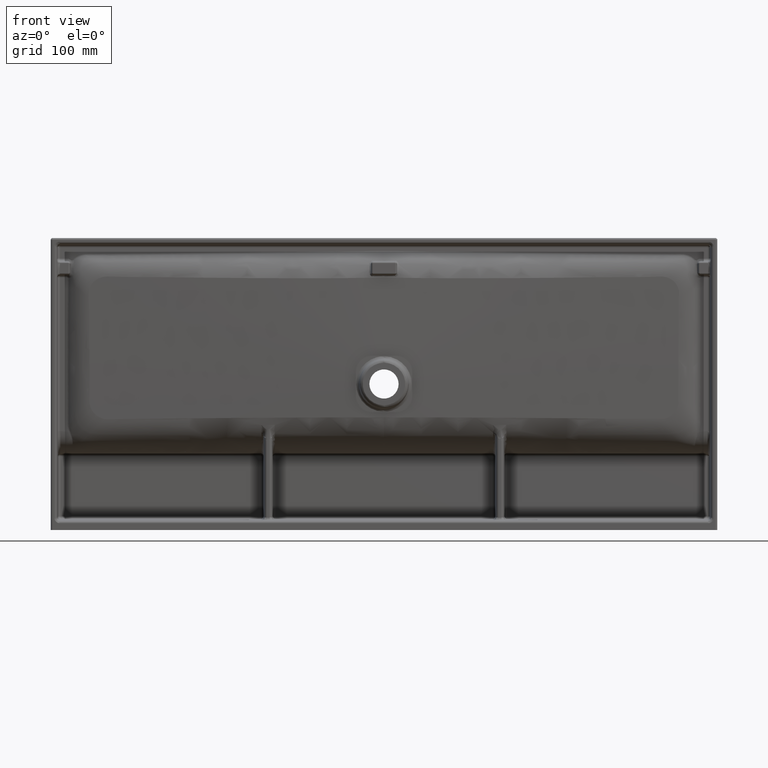
[diagram: clean part render]
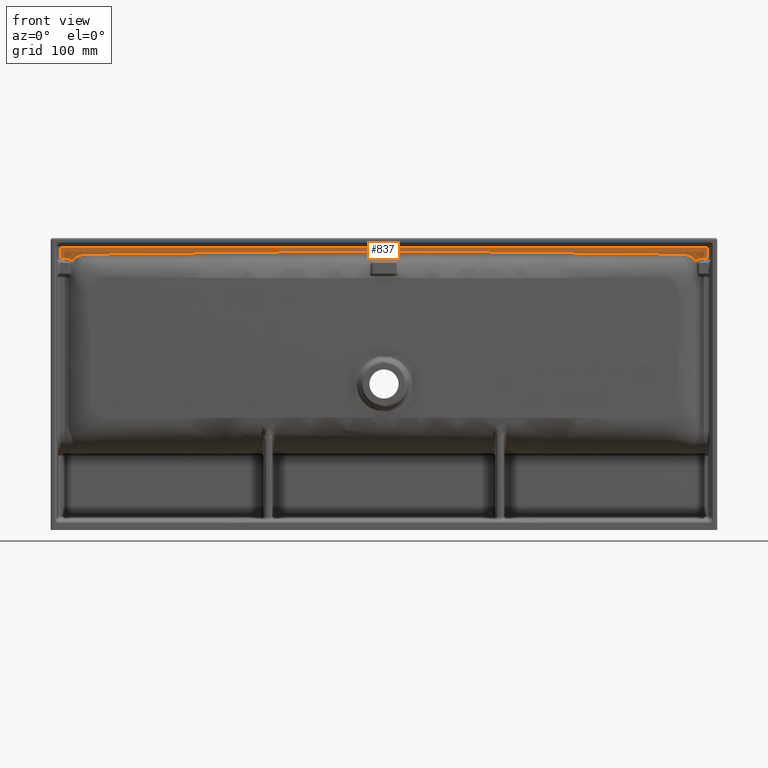
[diagram: same view with one face highlighted and labeled with its STEP entity id]
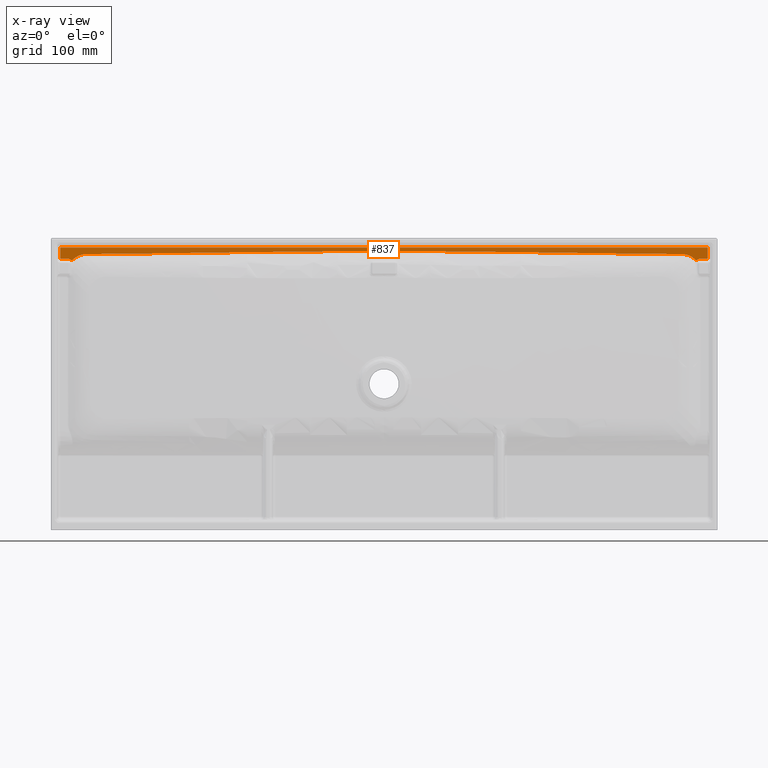
[diagram: x-ray of the same camera — body ghosted, the highlighted face saturated]
A machine part, front view. The second image highlights one B-rep face of the part: STEP entity #837.
The next image is the same camera in x-ray: the body ghosted, the highlighted face saturated — about 0% of this face is hidden behind the body in this view.
In plain terms, the highlighted planar face has unit normal (0, -1, 0).
Its self-contained STEP definition (entity closure, byte-faithful):
#400 = CARTESIAN_POINT ( 'NONE',  ( 1093.700221115422400, 39.99770165266112100, 425.6127473268538800 ) ) ;
#527 = CARTESIAN_POINT ( 'NONE',  ( 151.6819361182942300, 40.00000000000001400, 434.8611492601376700 ) ) ;
#727 = CARTESIAN_POINT ( 'NONE',  ( 1090.536940704790100, 39.99980009399224200, 425.4398121977569100 ) ) ;
#837 = ADVANCED_FACE ( 'NONE', ( #95981 ), #52782, .T. ) ;
#1213 = ORIENTED_EDGE ( 'NONE', *, *, #21924, .F. ) ;
#1656 = VERTEX_POINT ( 'NONE', #16282 ) ;
#2181 = CARTESIAN_POINT ( 'NONE',  ( 1109.879660202618000, 40.00000000000004300, 444.8796597188512000 ) ) ;
#2182 = CARTESIAN_POINT ( 'NONE',  ( 1079.645939720309100, 39.99999999999995700, 432.6838450193172900 ) ) ;
#2351 = CARTESIAN_POINT ( 'NONE',  ( 109.4630592952091200, 39.99980009399224200, 425.4398121977569600 ) ) ;
#2446 = CARTESIAN_POINT ( 'NONE',  ( 127.5691662305087800, 40.00000000000000700, 434.4643628189696200 ) ) ;
#2536 = CARTESIAN_POINT ( 'NONE',  ( 1087.804261909500400, 40.00000000000000000, 427.9562304683183800 ) ) ;
#2570 = B_SPLINE_CURVE_WITH_KNOTS ( 'NONE', 3,
 ( #18509, #77769, #33379, #85201 ),
 .UNSPECIFIED., .F., .F.,
 ( 4, 4 ),
 ( 0.0000000000000000000, 1.000000000000000000 ),
 .UNSPECIFIED. ) ;
#2648 = CARTESIAN_POINT ( 'NONE',  ( 454.2794459568282300, 40.00000000000002100, 438.3523378291911300 ) ) ;
#2671 = CARTESIAN_POINT ( 'NONE',  ( 106.2997788845763300, 39.99770165266116400, 425.6127473268540500 ) ) ;
#2812 = CARTESIAN_POINT ( 'NONE',  ( 293.0442814541315800, 39.99999999999998600, 436.4565669104729900 ) ) ;
#2989 = CARTESIAN_POINT ( 'NONE',  ( 101.2354726256276500, 39.99874783602765400, 427.6197839868947300 ) ) ;
#3077 = VERTEX_POINT ( 'NONE', #40008 ) ;
#3231 = B_SPLINE_CURVE_WITH_KNOTS ( 'NONE', 3,
 ( #10488, #76603, #17950, #69850, #25360 ),
 .UNSPECIFIED., .F., .F.,
 ( 4, 1, 4 ),
 ( 0.0000000000000000000, 0.4715489726724279000, 1.000000000000000000 ),
 .UNSPECIFIED. ) ;
#3293 = CARTESIAN_POINT ( 'NONE',  ( 258.9977915169596900, 40.00000000000000700, 435.9939357098571100 ) ) ;
#3521 = CARTESIAN_POINT ( 'NONE',  ( 119.0836948278168300, 40.00000000000000000, 432.1610032462682500 ) ) ;
#3588 = CARTESIAN_POINT ( 'NONE',  ( 960.0547274553479200, 40.00000000000001400, 435.7415454689900700 ) ) ;
#3789 = CARTESIAN_POINT ( 'NONE',  ( 151.6819361182942300, 40.00000000000001400, 434.8611492601376700 ) ) ;
#3908 = CARTESIAN_POINT ( 'NONE',  ( 210.6871382366134900, 40.00000000000000000, 435.3834038501073600 ) ) ;
#4126 = CARTESIAN_POINT ( 'NONE',  ( 664.4999407316630600, 39.99999999999997900, 439.1273738496947200 ) ) ;
#4166 = VERTEX_POINT ( 'NONE', #82264 ) ;
#4228 = CARTESIAN_POINT ( 'NONE',  ( 168.0749199170300000, 40.00000000000000700, 434.9729419829599800 ) ) ;
#4296 = CARTESIAN_POINT ( 'NONE',  ( 1084.548466629714300, 40.00000000000000000, 430.2785549529092500 ) ) ;
#4489 = CARTESIAN_POINT ( 'NONE',  ( 1080.916305172182800, 40.00000000000000000, 432.1610032462682500 ) ) ;
#4534 = B_SPLINE_CURVE_WITH_KNOTS ( 'NONE', 3,
 ( #40529, #84879, #48056, #3521 ),
 .UNSPECIFIED., .F., .F.,
 ( 4, 4 ),
 ( 0.0000000000000000000, 1.000000000000000000 ),
 .UNSPECIFIED. ) ;
#4589 = ORIENTED_EDGE ( 'NONE', *, *, #5446, .F. ) ;
#4624 = EDGE_CURVE ( 'NONE', #36039, #74951, #63282, .T. ) ;
#4685 = CARTESIAN_POINT ( 'NONE',  ( 1038.478271822521300, 40.00000000000000700, 434.9255939585455100 ) ) ;
#4779 = VERTEX_POINT ( 'NONE', #50300 ) ;
#4898 = CARTESIAN_POINT ( 'NONE',  ( 239.9452725446518600, 40.00000000000001400, 435.7415454689900100 ) ) ;
#4953 = B_SPLINE_CURVE_WITH_KNOTS ( 'NONE', 3,
 ( #70452, #77827, #85257, #40920, #92689, #48443, #3908, #55975, #11450, #63409, #18881, #70765, #26278, #78158, #33748, #85570, #41249, #93012, #48775, #4228, #56300, #11768 ),
 .UNSPECIFIED., .F., .F.,
 ( 4, 3, 3, 3, 3, 3, 3, 4 ),
 ( 0.0000000000000000000, 0.1419023585561965400, 0.2843050569037999200, 0.4272388425283997200, 0.5703101572728335200, 0.7135252292386814500, 0.8569115533795902400, 1.000000000000000000 ),
 .UNSPECIFIED. ) ;
#5001 = ORIENTED_EDGE ( 'NONE', *, *, #86597, .F. ) ;
#5013 = CARTESIAN_POINT ( 'NONE',  ( 989.3128617633861900, 40.00000000000000000, 435.3834038501073600 ) ) ;
#5261 = EDGE_CURVE ( 'NONE', #72424, #69901, #42715, .T. ) ;
#5446 = EDGE_CURVE ( 'NONE', #86605, #12883, #36279, .T. ) ;
#5765 = CARTESIAN_POINT ( 'NONE',  ( 721.4409607809277500, 40.00000000000000700, 438.5983466312151800 ) ) ;
#5779 = CARTESIAN_POINT ( 'NONE',  ( 1059.497067856974100, 39.99999999999997900, 434.8062626171286000 ) ) ;
#5874 = CARTESIAN_POINT ( 'NONE',  ( 931.6972057872138700, 40.00000000000002100, 436.1198164442190000 ) ) ;
#5920 = CARTESIAN_POINT ( 'NONE',  ( 130.9609172048125200, 40.00000000000000700, 434.7248571160270700 ) ) ;
#6189 = CARTESIAN_POINT ( 'NONE',  ( 894.6151920866863100, 40.00000000000000000, 436.6214414661398600 ) ) ;
#6260 = CARTESIAN_POINT ( 'NONE',  ( 142.0054130596654100, 40.00000000000000000, 434.8065578646030600 ) ) ;
#6262 = CARTESIAN_POINT ( 'NONE',  ( 1087.288653991905000, 40.00000000000004300, 428.3819181728496200 ) ) ;
#6502 = EDGE_CURVE ( 'NONE', #24119, #21481, #38157, .T. ) ;
#6510 = CARTESIAN_POINT ( 'NONE',  ( 815.6078097409356400, 40.00000000000001400, 437.5962639058384400 ) ) ;
#6581 = ORIENTED_EDGE ( 'NONE', *, *, #60829, .F. ) ;
#6866 = EDGE_LOOP ( 'NONE', ( #42036, #14252, #25783, #54995, #61972, #89417, #76950, #95470, #8580, #20252, #71327, #41165, #35046, #45655, #91897, #5001, #14375, #60896, #82913, #55312, #22651, #31990, #20278, #95600, #45912, #6581, #93574, #48525, #10210, #66018, #34736, #4589, #53497, #25521, #37139, #9361, #1213, #30244, #39580, #45289, #40202, #72675, #76016, #69198, #26482 ) ) ;
#7015 = EDGE_CURVE ( 'NONE', #96219, #72424, #83302, .T. ) ;
#7574 = CARTESIAN_POINT ( 'NONE',  ( 1098.156737076069900, 40.00010133873394100, 427.5957615026668500 ) ) ;
#7902 = CARTESIAN_POINT ( 'NONE',  ( 1093.144028120688500, 39.99575136127775500, 425.3395932355049900 ) ) ;
#8228 = CARTESIAN_POINT ( 'NONE',  ( 1090.208745142585500, 39.99734615080845400, 425.7261265027134400 ) ) ;
#8397 = CARTESIAN_POINT ( 'NONE',  ( 1099.002887575736200, 39.99983575457313400, 427.6199657183053100 ) ) ;
#8476 = CARTESIAN_POINT ( 'NONE',  ( 119.0836948278168300, 40.00000000000000000, 432.1610032462682500 ) ) ;
#8580 = ORIENTED_EDGE ( 'NONE', *, *, #49239, .F. ) ;
#9254 = B_SPLINE_CURVE_WITH_KNOTS ( 'NONE', 3,
 ( #4296, #92430, #63792, #19272, #71152 ),
 .UNSPECIFIED., .F., .F.,
 ( 4, 1, 4 ),
 ( 0.0000000000000000000, 0.5065684104620138400, 1.000000000000000000 ),
 .UNSPECIFIED. ) ;
#9311 = EDGE_CURVE ( 'NONE', #1656, #47490, #56248, .T. ) ;
#9361 = ORIENTED_EDGE ( 'NONE', *, *, #7015, .F. ) ;
#9544 = VERTEX_POINT ( 'NONE', #93984 ) ;
#9624 = EDGE_CURVE ( 'NONE', #81765, #24119, #19482, .T. ) ;
#9863 = CARTESIAN_POINT ( 'NONE',  ( 109.1901414714568500, 40.00226983611973700, 425.2493040718511600 ) ) ;
#9963 = CARTESIAN_POINT ( 'NONE',  ( 125.3054222665320200, 40.00000000000000000, 434.1231455443336200 ) ) ;
#10185 = CARTESIAN_POINT ( 'NONE',  ( 105.2365381474390800, 40.00094824422335900, 426.2402501020131400 ) ) ;
#10210 = ORIENTED_EDGE ( 'NONE', *, *, #66039, .F. ) ;
#10332 = CARTESIAN_POINT ( 'NONE',  ( 286.8686257462354100, 40.00000000000000000, 436.3729168782183500 ) ) ;
#10488 = CARTESIAN_POINT ( 'NONE',  ( 1072.430833769491100, 39.99999999999999300, 434.4643628189696200 ) ) ;
#10592 = EDGE_CURVE ( 'NONE', #31937, #32153, #2570, .T. ) ;
#10753 = B_SPLINE_CURVE_WITH_KNOTS ( 'NONE', 3,
 ( #13785, #6262, #21187, #73051, #28610 ),
 .UNSPECIFIED., .F., .F.,
 ( 4, 1, 4 ),
 ( 0.0000000000000000000, 0.5011584369217085800, 1.000000000000000000 ),
 .UNSPECIFIED. ) ;
#11330 = CARTESIAN_POINT ( 'NONE',  ( 146.9390072561889700, 40.00000000000002800, 434.8228716099034700 ) ) ;
#11450 = CARTESIAN_POINT ( 'NONE',  ( 204.1412678610464300, 40.00000000000000700, 435.3102280602791400 ) ) ;
#11768 = CARTESIAN_POINT ( 'NONE',  ( 161.5217281774786200, 40.00000000000000700, 434.9255939585455100 ) ) ;
#12184 = CARTESIAN_POINT ( 'NONE',  ( 1089.879527154204700, 39.99916981274115100, 426.0605630374466800 ) ) ;
#12208 = CARTESIAN_POINT ( 'NONE',  ( 1025.365111359745000, 40.00000000000000700, 435.0260539015329200 ) ) ;
#12423 = CARTESIAN_POINT ( 'NONE',  ( 233.4599233227581600, 40.00000000000000700, 435.6577804463721000 ) ) ;
#12516 = CARTESIAN_POINT ( 'NONE',  ( 1087.804261909500400, 40.00000000000000000, 427.9562304683183800 ) ) ;
#12537 = CARTESIAN_POINT ( 'NONE',  ( 982.7913378642001600, 40.00000000000000000, 435.4584663122163900 ) ) ;
#12883 = VERTEX_POINT ( 'NONE', #78714 ) ;
#13234 = EDGE_CURVE ( 'NONE', #21481, #37687, #40547, .T. ) ;
#13715 = CARTESIAN_POINT ( 'NONE',  ( 888.4501711538122200, 40.00000000000000700, 436.7026752992042000 ) ) ;
#13784 = CARTESIAN_POINT ( 'NONE',  ( 138.1059670583335000, 40.00000000000000700, 434.8148430459085600 ) ) ;
#13785 = CARTESIAN_POINT ( 'NONE',  ( 1087.804261909500400, 40.00000000000000000, 427.9562304683183800 ) ) ;
#14252 = ORIENTED_EDGE ( 'NONE', *, *, #62439, .F. ) ;
#14297 = VERTEX_POINT ( 'NONE', #35813 ) ;
#14375 = ORIENTED_EDGE ( 'NONE', *, *, #27907, .F. ) ;
#14855 = CARTESIAN_POINT ( 'NONE',  ( 127.5691662305087800, 40.00000000000000700, 434.4643628189696200 ) ) ;
#15093 = CARTESIAN_POINT ( 'NONE',  ( 1097.556605320705600, 40.00078441571354700, 427.5068411344357700 ) ) ;
#15251 = B_SPLINE_CURVE_WITH_KNOTS ( 'NONE', 3,
 ( #92720, #63441, #70794, #26312, #78192 ),
 .UNSPECIFIED., .F., .F.,
 ( 4, 1, 4 ),
 ( 0.0000000000000000000, 0.4988415630782913600, 1.000000000000000000 ),
 .UNSPECIFIED. ) ;
#15404 = CARTESIAN_POINT ( 'NONE',  ( 121.0016986442853400, 40.00000000000000700, 432.9123646866077000 ) ) ;
#15405 = CARTESIAN_POINT ( 'NONE',  ( 1092.847938413519400, 39.99596110997979500, 425.2117983002521600 ) ) ;
#15530 = LINE ( 'NONE', #39045, #57432 ) ;
#15734 = CARTESIAN_POINT ( 'NONE',  ( 1089.879527154204700, 39.99916981274115100, 426.0605630374466800 ) ) ;
#15982 = CARTESIAN_POINT ( 'NONE',  ( 117.2312265981192400, 40.00000000000002800, 431.3095267548788500 ) ) ;
#16282 = CARTESIAN_POINT ( 'NONE',  ( 239.9452725446518600, 40.00000000000001400, 435.7415454689900100 ) ) ;
#17251 = CARTESIAN_POINT ( 'NONE',  ( 950.3459539170271500, 40.00000000000000000, 435.8696959339063100 ) ) ;
#17308 = CARTESIAN_POINT ( 'NONE',  ( 112.1957380904994900, 40.00000000000000000, 427.9562304683182100 ) ) ;
#17340 = CARTESIAN_POINT ( 'NONE',  ( 108.7033247745104100, 40.00553079068439600, 425.0290337957279700 ) ) ;
#17346 = CARTESIAN_POINT ( 'NONE',  ( 527.1186182122106600, 40.00000000000000700, 439.0500320463305600 ) ) ;
#17438 = CARTESIAN_POINT ( 'NONE',  ( 123.0786500704770200, 40.00000000000001400, 433.5640814234785700 ) ) ;
#17482 = CARTESIAN_POINT ( 'NONE',  ( 347.5672931952634000, 40.00000000000002100, 437.1628207871093500 ) ) ;
#17506 = VERTEX_POINT ( 'NONE', #71883 ) ;
#17654 = CARTESIAN_POINT ( 'NONE',  ( 104.1613949319572300, 39.99885036109390800, 426.8547136662727400 ) ) ;
#17795 = CARTESIAN_POINT ( 'NONE',  ( 280.6906671031119900, 39.99999999999997900, 436.2888355438605000 ) ) ;
#17805 = CARTESIAN_POINT ( 'NONE',  ( 454.2794459568282300, 40.00000000000002100, 438.3523378291911300 ) ) ;
#17950 = CARTESIAN_POINT ( 'NONE',  ( 1070.770987784629100, 40.00000000000000700, 434.6421470475534600 ) ) ;
#18115 = CARTESIAN_POINT ( 'NONE',  ( 161.5217281774786200, 40.00000000000000700, 434.9255939585455100 ) ) ;
#18126 = CARTESIAN_POINT ( 'NONE',  ( 130.3619442460188800, 39.99999999999997900, 434.7023775458553700 ) ) ;
#18128 = VERTEX_POINT ( 'NONE', #21574 ) ;
#18187 = EDGE_CURVE ( 'NONE', #52285, #76687, #79632, .T. ) ;
#18509 = CARTESIAN_POINT ( 'NONE',  ( 454.2794459568282300, 40.00000000000002100, 438.3523378291911300 ) ) ;
#18698 = EDGE_CURVE ( 'NONE', #29181, #62322, #60069, .T. ) ;
#18765 = CARTESIAN_POINT ( 'NONE',  ( 142.0054130596654100, 40.00000000000000000, 434.8065578646030600 ) ) ;
#18881 = CARTESIAN_POINT ( 'NONE',  ( 197.5922083021300500, 40.00000000000000700, 435.2406983178640300 ) ) ;
#19264 = CARTESIAN_POINT ( 'NONE',  ( 934.7988703666890200, 40.00000000000000700, 436.0776360293011700 ) ) ;
#19272 = CARTESIAN_POINT ( 'NONE',  ( 1081.534454718787600, 39.99999999999998600, 431.8937962194152600 ) ) ;
#19482 = B_SPLINE_CURVE_WITH_KNOTS ( 'NONE', 3,
 ( #5874, #42551, #65317, #20813, #72660, #28217, #80090, #35679, #87480, #43195, #94934, #50725, #6189, #58225, #13715, #65626, #21118, #72975, #28536, #80401 ),
 .UNSPECIFIED., .F., .F.,
 ( 4, 3, 3, 3, 3, 3, 1, 4 ),
 ( 0.0000000000000000000, 0.08010211564161560900, 0.1599289114422019200, 0.2397258802823680200, 0.3194296821583363900, 0.3990888445379192100, 0.6492878130391522800, 1.000000000000000000 ),
 .UNSPECIFIED. ) ;
#19645 = CARTESIAN_POINT ( 'NONE',  ( 1018.798351719647000, 40.00000000000000000, 435.0828600119685900 ) ) ;
#19965 = CARTESIAN_POINT ( 'NONE',  ( 976.2813074232500400, 40.00000000000000000, 435.5365048197242000 ) ) ;
#20252 = ORIENTED_EDGE ( 'NONE', *, *, #66092, .F. ) ;
#20278 = ORIENTED_EDGE ( 'NONE', *, *, #6502, .F. ) ;
#20502 = VECTOR ( 'NONE', #59960, 1000.000000000000000 ) ;
#20813 = CARTESIAN_POINT ( 'NONE',  ( 922.3983106231634100, 40.00000000000000000, 436.2466778713766200 ) ) ;
#21060 = CARTESIAN_POINT ( 'NONE',  ( 584.0875489015149900, 40.00000000000000000, 439.5588599772960900 ) ) ;
#21118 = CARTESIAN_POINT ( 'NONE',  ( 875.6858714748378800, 40.00000000000002100, 436.8686797899021000 ) ) ;
#21186 = CARTESIAN_POINT ( 'NONE',  ( 133.3938998856845600, 40.00000000000004300, 434.7867756935336300 ) ) ;
#21187 = CARTESIAN_POINT ( 'NONE',  ( 1086.229795987145100, 40.00000000000002800, 429.1949713837577700 ) ) ;
#21481 = VERTEX_POINT ( 'NONE', #53473 ) ;
#21574 = CARTESIAN_POINT ( 'NONE',  ( 1109.879660202617700, 39.99999999999993600, 427.6203402811500500 ) ) ;
#21924 = EDGE_CURVE ( 'NONE', #66558, #96219, #9254, .T. ) ;
#22194 = B_SPLINE_CURVE_WITH_KNOTS ( 'NONE', 3,
 ( #66750, #66442, #74118, #29688 ),
 .UNSPECIFIED., .F., .F.,
 ( 4, 4 ),
 ( 0.0000000000000000000, 1.000000000000000000 ),
 .UNSPECIFIED. ) ;
#22254 = CARTESIAN_POINT ( 'NONE',  ( 1077.620871124175900, 40.00000000000000700, 433.3707671206507800 ) ) ;
#22478 = CARTESIAN_POINT ( 'NONE',  ( 1096.977109702543400, 40.00022042307675500, 427.3471366981748900 ) ) ;
#22536 = EDGE_CURVE ( 'NONE', #69901, #14297, #51093, .T. ) ;
#22619 = B_SPLINE_CURVE_WITH_KNOTS ( 'NONE', 3,
 ( #34632, #79694, #42786, #94526, #50309, #5779, #57826 ),
 .UNSPECIFIED., .F., .F.,
 ( 4, 1, 1, 1, 4 ),
 ( 0.0000000000000000000, 0.1508033676624298000, 0.2867679395699557800, 0.5529293912412454000, 1.000000000000000000 ),
 .UNSPECIFIED. ) ;
#22651 = ORIENTED_EDGE ( 'NONE', *, *, #64492, .F. ) ;
#22788 = CARTESIAN_POINT ( 'NONE',  ( 1092.326334756465500, 39.99988453503286200, 425.0375849608543600 ) ) ;
#22813 = CARTESIAN_POINT ( 'NONE',  ( 599.9999999999998900, 40.00000000000003600, 444.8796597188508600 ) ) ;
#23045 = CARTESIAN_POINT ( 'NONE',  ( 118.4655452812120000, 39.99999999999998600, 431.8937962194152600 ) ) ;
#23171 = CARTESIAN_POINT ( 'NONE',  ( 131.2817699526939100, 40.00000000000002800, 434.7369611381561200 ) ) ;
#23286 = CARTESIAN_POINT ( 'NONE',  ( 1109.879660202617700, 39.99999999999993600, 427.6203402811500500 ) ) ;
#23365 = CARTESIAN_POINT ( 'NONE',  ( 115.4515333702855200, 40.00000000000000000, 430.2785549529092500 ) ) ;
#23561 = CARTESIAN_POINT ( 'NONE',  ( 599.9999999999998900, 40.00000000000001400, 439.6790831527797000 ) ) ;
#23738 = CARTESIAN_POINT ( 'NONE',  ( 112.1957380904994900, 40.00000000000000000, 427.9562304683182100 ) ) ;
#24119 = VERTEX_POINT ( 'NONE', #66892 ) ;
#24445 = CARTESIAN_POINT ( 'NONE',  ( 110.1204728524535700, 39.99916981274115100, 426.0605630308476200 ) ) ;
#24472 = CARTESIAN_POINT ( 'NONE',  ( 1068.718230047305700, 40.00000000000002800, 434.7369611381561200 ) ) ;
#24589 = VERTEX_POINT ( 'NONE', #2536 ) ;
#24636 = CARTESIAN_POINT ( 'NONE',  ( 944.1167856295809300, 40.00000000000000000, 435.9521723299097900 ) ) ;
#24731 = CARTESIAN_POINT ( 'NONE',  ( 108.0968132499692400, 40.00406926216496800, 424.9718296439455100 ) ) ;
#24739 = B_SPLINE_CURVE_WITH_KNOTS ( 'NONE', 3,
 ( #17308, #61846, #32186, #83991 ),
 .UNSPECIFIED., .F., .F.,
 ( 4, 4 ),
 ( 0.0000000000000000000, 1.000000000000000000 ),
 .UNSPECIFIED. ) ;
#24878 = CARTESIAN_POINT ( 'NONE',  ( 314.6323462108068200, 40.00000000000000000, 436.7427648944042700 ) ) ;
#25064 = CARTESIAN_POINT ( 'NONE',  ( 103.2149178396449800, 39.99979667808015900, 427.2788344709398400 ) ) ;
#25164 = EDGE_CURVE ( 'NONE', #12883, #83966, #22619, .T. ) ;
#25209 = CARTESIAN_POINT ( 'NONE',  ( 274.5020578568147000, 40.00000000000002100, 436.2043760187775100 ) ) ;
#25360 = CARTESIAN_POINT ( 'NONE',  ( 1069.039082795187100, 39.99999999999999300, 434.7248571160270100 ) ) ;
#25521 = ORIENTED_EDGE ( 'NONE', *, *, #22536, .F. ) ;
#25783 = ORIENTED_EDGE ( 'NONE', *, *, #86913, .F. ) ;
#26262 = B_SPLINE_CURVE_WITH_KNOTS ( 'NONE', 3,
 ( #84945, #77522, #48128, #3588 ),
 .UNSPECIFIED., .F., .F.,
 ( 4, 4 ),
 ( 0.0000000000000000000, 1.000000000000000000 ),
 .UNSPECIFIED. ) ;
#26274 = EDGE_CURVE ( 'NONE', #49291, #50594, #81798, .T. ) ;
#26278 = CARTESIAN_POINT ( 'NONE',  ( 191.0399587595790600, 40.00000000000000000, 435.1750769887784100 ) ) ;
#26312 = CARTESIAN_POINT ( 'NONE',  ( 112.7113460080947900, 40.00000000000004300, 428.3819181728496200 ) ) ;
#26482 = ORIENTED_EDGE ( 'NONE', *, *, #53148, .F. ) ;
#27042 = CARTESIAN_POINT ( 'NONE',  ( 1012.239464356254600, 40.00000000000002800, 435.1428984476147500 ) ) ;
#27341 = EDGE_CURVE ( 'NONE', #4166, #4779, #4534, .T. ) ;
#27375 = CARTESIAN_POINT ( 'NONE',  ( 969.7827673461097200, 40.00000000000000700, 435.6171621575852600 ) ) ;
#27525 = CARTESIAN_POINT ( 'NONE',  ( 1057.994586940334300, 40.00000000000000700, 434.8065578646030100 ) ) ;
#27907 = EDGE_CURVE ( 'NONE', #32153, #3077, #28180, .T. ) ;
#28180 = B_SPLINE_CURVE_WITH_KNOTS ( 'NONE', 3,
 ( #58156, #91282, #17482, #69385, #24878, #76766, #32364, #84173, #39805, #91590, #47370, #2812, #54882, #10332, #62343, #17795, #69696, #25209, #77079, #32681 ),
 .UNSPECIFIED., .F., .F.,
 ( 4, 1, 3, 3, 3, 3, 3, 4 ),
 ( 0.0000000000000000000, 0.3507121869608477200, 0.6009111554620808500, 0.6805703178416636600, 0.7602741197176319200, 0.8400710885577981100, 0.9198978843583843800, 1.000000000000000000 ),
 .UNSPECIFIED. ) ;
#28217 = CARTESIAN_POINT ( 'NONE',  ( 916.2203549454610500, 40.00000000000000700, 436.3309769476101100 ) ) ;
#28284 = CARTESIAN_POINT ( 'NONE',  ( 1045.038153163364500, 39.99999999999998600, 434.8855967709949400 ) ) ;
#28536 = CARTESIAN_POINT ( 'NONE',  ( 829.1793331773011500, 40.00000000000002100, 437.4400225345787000 ) ) ;
#28609 = CARTESIAN_POINT ( 'NONE',  ( 131.9236834610791200, 40.00000000000000000, 434.7549051188996700 ) ) ;
#28610 = CARTESIAN_POINT ( 'NONE',  ( 1084.548466629714300, 40.00000000000000000, 430.2785549529092500 ) ) ;
#28858 = CARTESIAN_POINT ( 'NONE',  ( 769.0164776485835300, 40.00000000000000700, 438.1165331390426400 ) ) ;
#28960 = VERTEX_POINT ( 'NONE', #82142 ) ;
#28967 = CARTESIAN_POINT ( 'NONE',  ( 672.8813817877890000, 40.00000000000000700, 439.0500320463305600 ) ) ;
#29181 = VERTEX_POINT ( 'NONE', #24445 ) ;
#29398 = CARTESIAN_POINT ( 'NONE',  ( 161.5217281774786200, 40.00000000000000700, 434.9255939585455100 ) ) ;
#29450 = CARTESIAN_POINT ( 'NONE',  ( 252.7686291529401800, 39.99999999999997900, 435.9110143662300100 ) ) ;
#29688 = CARTESIAN_POINT ( 'NONE',  ( 90.12033979738210100, 40.00000000000012100, 427.6203402811495900 ) ) ;
#29712 = CARTESIAN_POINT ( 'NONE',  ( 1078.998301355714100, 40.00000000000000000, 432.9123646866075900 ) ) ;
#29936 = CARTESIAN_POINT ( 'NONE',  ( 1096.209122108220500, 39.99877051165164200, 427.0442175424397500 ) ) ;
#30244 = ORIENTED_EDGE ( 'NONE', *, *, #50343, .F. ) ;
#30249 = CARTESIAN_POINT ( 'NONE',  ( 1091.696963661376000, 40.00535121944294300, 424.9679603095809200 ) ) ;
#30279 = B_SPLINE_CURVE_WITH_KNOTS ( 'NONE', 3,
 ( #12184, #34490, #57045, #12516 ),
 .UNSPECIFIED., .F., .F.,
 ( 4, 4 ),
 ( 0.0000000000000000000, 1.000000000000000000 ),
 .UNSPECIFIED. ) ;
#30636 = CARTESIAN_POINT ( 'NONE',  ( 1038.478271822521300, 40.00000000000000700, 434.9255939585455100 ) ) ;
#31343 = EDGE_CURVE ( 'NONE', #88833, #1656, #84383, .T. ) ;
#31937 = VERTEX_POINT ( 'NONE', #17805 ) ;
#31966 = CARTESIAN_POINT ( 'NONE',  ( 1069.039082795187100, 39.99999999999999300, 434.7248571160270100 ) ) ;
#31990 = ORIENTED_EDGE ( 'NONE', *, *, #13234, .F. ) ;
#32039 = EDGE_CURVE ( 'NONE', #46392, #53135, #46605, .T. ) ;
#32153 = VERTEX_POINT ( 'NONE', #41131 ) ;
#32186 = CARTESIAN_POINT ( 'NONE',  ( 110.7801081090975100, 39.99999999999998600, 426.7265692820335500 ) ) ;
#32222 = CARTESIAN_POINT ( 'NONE',  ( 107.4602318863709500, 39.99738244865180500, 425.0982233089969200 ) ) ;
#32364 = CARTESIAN_POINT ( 'NONE',  ( 308.4673160352700700, 40.00000000000000000, 436.6622355525802300 ) ) ;
#32401 = CARTESIAN_POINT ( 'NONE',  ( 90.12033979738187400, 40.00000000000003600, 444.8796597188511400 ) ) ;
#32542 = CARTESIAN_POINT ( 'NONE',  ( 102.6375501003088000, 40.00072528906545000, 427.4611232165519300 ) ) ;
#32679 = CARTESIAN_POINT ( 'NONE',  ( 158.2418000136693800, 39.99999999999993600, 434.9037403286069400 ) ) ;
#32681 = CARTESIAN_POINT ( 'NONE',  ( 268.3027942127859500, 40.00000000000001400, 436.1198164442190000 ) ) ;
#32724 = CARTESIAN_POINT ( 'NONE',  ( 1099.002887575736200, 39.99983575457313400, 427.6199657183053100 ) ) ;
#32827 = CARTESIAN_POINT ( 'NONE',  ( 265.2011296333107000, 40.00000000000000700, 436.0776360293011700 ) ) ;
#33001 = CARTESIAN_POINT ( 'NONE',  ( 128.0998693873372900, 40.00000000000000700, 434.5310657904742600 ) ) ;
#33128 = CARTESIAN_POINT ( 'NONE',  ( 123.0786500704770200, 40.00000000000001400, 433.5640814234785700 ) ) ;
#33379 = CARTESIAN_POINT ( 'NONE',  ( 407.6877647271707000, 40.00000000000000000, 437.8643472528805800 ) ) ;
#33748 = CARTESIAN_POINT ( 'NONE',  ( 184.4810993543342800, 40.00000000000000000, 435.1120538044476700 ) ) ;
#33966 = CARTESIAN_POINT ( 'NONE',  ( 672.8813817877890000, 40.00000000000000700, 439.0500320463305600 ) ) ;
#34303 = CARTESIAN_POINT ( 'NONE',  ( 154.9618468366351200, 39.99999999999998600, 434.8855967709949400 ) ) ;
#34490 = CARTESIAN_POINT ( 'NONE',  ( 1089.219891890902100, 39.99999999999999300, 426.7265692820336700 ) ) ;
#34511 = CARTESIAN_POINT ( 'NONE',  ( 1005.683909941242900, 40.00000000000000000, 435.2072226206396400 ) ) ;
#34632 = CARTESIAN_POINT ( 'NONE',  ( 1068.076316538920500, 40.00000000000000000, 434.7549051188996700 ) ) ;
#34724 = EDGE_CURVE ( 'NONE', #79241, #4166, #79541, .T. ) ;
#34736 = ORIENTED_EDGE ( 'NONE', *, *, #25164, .F. ) ;
#35046 = ORIENTED_EDGE ( 'NONE', *, *, #69017, .F. ) ;
#35679 = CARTESIAN_POINT ( 'NONE',  ( 910.0435477673289600, 40.00000000000000700, 436.4148425329748900 ) ) ;
#35749 = CARTESIAN_POINT ( 'NONE',  ( 1048.318063881705300, 40.00000000000000000, 434.8611492601377200 ) ) ;
#35813 = CARTESIAN_POINT ( 'NONE',  ( 1072.430833769491100, 39.99999999999999300, 434.4643628189696200 ) ) ;
#35932 = CARTESIAN_POINT ( 'NONE',  ( 535.5000592683367100, 39.99999999999997900, 439.1273738496947200 ) ) ;
#36039 = VERTEX_POINT ( 'NONE', #29398 ) ;
#36210 = CARTESIAN_POINT ( 'NONE',  ( 672.8813817877890000, 40.00000000000000700, 439.0500320463305600 ) ) ;
#36279 = B_SPLINE_CURVE_WITH_KNOTS ( 'NONE', 3,
 ( #31966, #24472, #82824, #83779 ),
 .UNSPECIFIED., .F., .F.,
 ( 4, 4 ),
 ( 0.0000000000000000000, 1.000000000000000000 ),
 .UNSPECIFIED. ) ;
#36291 = B_SPLINE_CURVE_WITH_KNOTS ( 'NONE', 3,
 ( #2446, #76404, #9963, #61978, #17438 ),
 .UNSPECIFIED., .F., .F.,
 ( 4, 1, 4 ),
 ( 0.0000000000000000000, 0.4978529221845208200, 1.000000000000000000 ),
 .UNSPECIFIED. ) ;
#36790 = CARTESIAN_POINT ( 'NONE',  ( 1053.060992743810900, 40.00000000000002800, 434.8228716099034700 ) ) ;
#36905 = CARTESIAN_POINT ( 'NONE',  ( 246.4177910800920900, 40.00000000000000000, 435.8267640970132100 ) ) ;
#36918 = B_SPLINE_CURVE_WITH_KNOTS ( 'NONE', 3,
 ( #88868, #37071, #52113, #7574, #59610, #15093, #67000, #22478, #74373, #29936, #81770, #37384, #89181, #44943, #400, #52443, #7902, #59936, #15405, #67315, #22788, #74688, #30249, #82087, #37697, #89496, #45263, #727, #52775, #8228, #60266, #15734 ),
 .UNSPECIFIED., .F., .F.,
 ( 4, 2, 2, 2, 2, 2, 2, 2, 2, 2, 2, 2, 2, 2, 2, 4 ),
 ( 1.000000000000000000, 1.627838807579574000, 2.255677615159148000, 2.883516422738722400, 3.511355230318296400, 4.767032845477444900, 6.022710460636592900, 7.278388075795740900, 7.592307479585489500, 7.906226883375238900, 8.534065690955333800, 9.161904498535431400, 9.789743306115527200, 10.10366270990557400, 10.41758211369562300, 11.04542092127571900 ),
 .UNSPECIFIED. ) ;
#37071 = CARTESIAN_POINT ( 'NONE',  ( 1098.764527374371700, 39.99874783602763300, 427.6197839868947900 ) ) ;
#37139 = ORIENTED_EDGE ( 'NONE', *, *, #5261, .F. ) ;
#37384 = CARTESIAN_POINT ( 'NONE',  ( 1095.115279072121200, 40.00003886354156900, 426.4523651267727500 ) ) ;
#37687 = VERTEX_POINT ( 'NONE', #28967 ) ;
#37697 = CARTESIAN_POINT ( 'NONE',  ( 1091.101442286557600, 40.00453577146450400, 425.0932223517662600 ) ) ;
#37768 = CARTESIAN_POINT ( 'NONE',  ( 931.6972057872138700, 40.00000000000002100, 436.1198164442190000 ) ) ;
#38157 = B_SPLINE_CURVE_WITH_KNOTS ( 'NONE', 3,
 ( #6510, #73295, #28858, #80710 ),
 .UNSPECIFIED., .F., .F.,
 ( 4, 4 ),
 ( 0.0000000000000000000, 1.000000000000000000 ),
 .UNSPECIFIED. ) ;
#38444 = VERTEX_POINT ( 'NONE', #23738 ) ;
#39045 = CARTESIAN_POINT ( 'NONE',  ( 90.12033979738166100, 40.00000000000000000, 429.0038207778372900 ) ) ;
#39178 = CARTESIAN_POINT ( 'NONE',  ( 1080.285883406297900, 40.00000000000000700, 432.4334617229116600 ) ) ;
#39344 = CARTESIAN_POINT ( 'NONE',  ( 109.9462892145070900, 39.99733763134333500, 425.8843942126333100 ) ) ;
#39580 = ORIENTED_EDGE ( 'NONE', *, *, #54505, .F. ) ;
#39640 = CARTESIAN_POINT ( 'NONE',  ( 527.1186182122106600, 40.00000000000000700, 439.0500320463305600 ) ) ;
#39663 = CARTESIAN_POINT ( 'NONE',  ( 107.0513031488472700, 39.99575083534350000, 425.2532802944059000 ) ) ;
#39805 = CARTESIAN_POINT ( 'NONE',  ( 302.3005723915756000, 40.00000000000002100, 436.5806259813488200 ) ) ;
#39986 = CARTESIAN_POINT ( 'NONE',  ( 102.0419861584784200, 40.00046339850909000, 427.5752182582250500 ) ) ;
#40008 = CARTESIAN_POINT ( 'NONE',  ( 268.3027942127859500, 40.00000000000001400, 436.1198164442190000 ) ) ;
#40202 = ORIENTED_EDGE ( 'NONE', *, *, #55922, .T. ) ;
#40529 = CARTESIAN_POINT ( 'NONE',  ( 121.0016986442853400, 40.00000000000000700, 432.9123646866077000 ) ) ;
#40547 = B_SPLINE_CURVE_WITH_KNOTS ( 'NONE', 3,
 ( #86748, #5765, #80614, #36210 ),
 .UNSPECIFIED., .F., .F.,
 ( 4, 4 ),
 ( 0.0000000000000000000, 1.000000000000000000 ),
 .UNSPECIFIED. ) ;
#40584 = CARTESIAN_POINT ( 'NONE',  ( 1084.548466629714300, 40.00000000000000000, 430.2785549529092500 ) ) ;
#40920 = CARTESIAN_POINT ( 'NONE',  ( 220.4694057558500600, 40.00000000000000000, 435.4975540425545000 ) ) ;
#41131 = CARTESIAN_POINT ( 'NONE',  ( 384.3921902590641400, 40.00000000000001400, 437.5962639058384400 ) ) ;
#41165 = ORIENTED_EDGE ( 'NONE', *, *, #4624, .F. ) ;
#41249 = CARTESIAN_POINT ( 'NONE',  ( 177.9182757265800800, 40.00000000000000000, 435.0536312017335900 ) ) ;
#41266 = CARTESIAN_POINT ( 'NONE',  ( 1109.879660202618200, 40.00000000000000000, 429.0038207778372900 ) ) ;
#41311 = CARTESIAN_POINT ( 'NONE',  ( 937.9005357455351900, 39.99999999999997900, 436.0355126078732200 ) ) ;
#41372 = CARTESIAN_POINT ( 'NONE',  ( 1031.925080082969800, 40.00000000000000700, 434.9729419829599800 ) ) ;
#41482 = CARTESIAN_POINT ( 'NONE',  ( 640.2062684005121600, 40.00000000000000700, 439.3509330948687600 ) ) ;
#42013 = CARTESIAN_POINT ( 'NONE',  ( 999.1316873216726400, 40.00000000000000000, 435.2754796598621300 ) ) ;
#42036 = ORIENTED_EDGE ( 'NONE', *, *, #18698, .F. ) ;
#42353 = EDGE_CURVE ( 'NONE', #72450, #31937, #92005, .T. ) ;
#42486 = EDGE_CURVE ( 'NONE', #14297, #86605, #3231, .T. ) ;
#42551 = CARTESIAN_POINT ( 'NONE',  ( 928.5975734619200900, 40.00000000000000000, 436.1620593462751600 ) ) ;
#42715 = B_SPLINE_CURVE_WITH_KNOTS ( 'NONE', 3,
 ( #29712, #74144, #22254, #81539 ),
 .UNSPECIFIED., .F., .F.,
 ( 4, 4 ),
 ( 0.0000000000000000000, 1.000000000000000000 ),
 .UNSPECIFIED. ) ;
#42786 = CARTESIAN_POINT ( 'NONE',  ( 1066.606100114315300, 40.00000000000004300, 434.7867756935336300 ) ) ;
#43012 = DIRECTION ( 'NONE',  ( 6.804442739635683600E-018, -1.000000000000000000, 0.0000000000000000000 ) ) ;
#43195 = CARTESIAN_POINT ( 'NONE',  ( 903.8678858939564400, 40.00000000000000000, 436.4980360534766000 ) ) ;
#43268 = CARTESIAN_POINT ( 'NONE',  ( 1041.758199986330300, 39.99999999999993600, 434.9037403286069400 ) ) ;
#43897 = CARTESIAN_POINT ( 'NONE',  ( 1074.694577733467700, 40.00000000000000000, 434.1231455443336200 ) ) ;
#44321 = CARTESIAN_POINT ( 'NONE',  ( 1048.318063881705300, 40.00000000000000000, 434.8611492601377200 ) ) ;
#44447 = CARTESIAN_POINT ( 'NONE',  ( 239.9452725446518600, 40.00000000000001400, 435.7415454689900100 ) ) ;
#44671 = CARTESIAN_POINT ( 'NONE',  ( 131.6027152408478900, 40.00000000000002100, 434.7464633301606800 ) ) ;
#44801 = CARTESIAN_POINT ( 'NONE',  ( 941.0022084830402500, 40.00000000000001400, 435.9939357098570600 ) ) ;
#44943 = CARTESIAN_POINT ( 'NONE',  ( 1094.055182951331500, 40.00082655876612800, 425.8215989196010000 ) ) ;
#45263 = CARTESIAN_POINT ( 'NONE',  ( 1090.713908967745100, 40.00139512711259500, 425.3110935106568600 ) ) ;
#45289 = ORIENTED_EDGE ( 'NONE', *, *, #86006, .F. ) ;
#45655 = ORIENTED_EDGE ( 'NONE', *, *, #9311, .F. ) ;
#45912 = ORIENTED_EDGE ( 'NONE', *, *, #89047, .F. ) ;
#45950 = B_SPLINE_CURVE_WITH_KNOTS ( 'NONE', 3,
 ( #33966, #4126, #41482, #93231, #48996 ),
 .UNSPECIFIED., .F., .F.,
 ( 4, 1, 4 ),
 ( 0.0000000000000000000, 0.3450051659433085400, 1.000000000000000000 ),
 .UNSPECIFIED. ) ;
#46392 = VERTEX_POINT ( 'NONE', #5920 ) ;
#46605 = B_SPLINE_CURVE_WITH_KNOTS ( 'NONE', 3,
 ( #77404, #18126, #62353, #33001, #84827 ),
 .UNSPECIFIED., .F., .F.,
 ( 4, 1, 4 ),
 ( 0.0000000000000000000, 0.5284510273275721000, 1.000000000000000000 ),
 .UNSPECIFIED. ) ;
#46617 = DIRECTION ( 'NONE',  ( 0.0000000000000000000, 0.0000000000000000000, -1.000000000000000000 ) ) ;
#46804 = CARTESIAN_POINT ( 'NONE',  ( 956.8184622199282800, 40.00000000000000000, 435.7837005954353300 ) ) ;
#46867 = CARTESIAN_POINT ( 'NONE',  ( 100.9970611875703500, 39.99983576041981300, 427.6200593667063000 ) ) ;
#46910 = CARTESIAN_POINT ( 'NONE',  ( 109.5465372271734000, 39.99906341336457400, 425.5085004630881800 ) ) ;
#47201 = CARTESIAN_POINT ( 'NONE',  ( 478.5590392190719600, 40.00000000000000700, 438.5983466312151800 ) ) ;
#47224 = CARTESIAN_POINT ( 'NONE',  ( 106.7624192115835100, 39.99595853864300900, 425.3838284341923100 ) ) ;
#47370 = CARTESIAN_POINT ( 'NONE',  ( 296.1321141060432800, 40.00000000000000000, 436.4980360534766000 ) ) ;
#47490 = VERTEX_POINT ( 'NONE', #84241 ) ;
#47537 = CARTESIAN_POINT ( 'NONE',  ( 101.4385722348711000, 39.99937834424100200, 427.6179465366971000 ) ) ;
#47835 = CARTESIAN_POINT ( 'NONE',  ( 262.0994642544645800, 39.99999999999997900, 436.0355126078732200 ) ) ;
#47865 = B_SPLINE_CURVE_WITH_KNOTS ( 'NONE', 3,
 ( #35749, #28284, #43268, #95004 ),
 .UNSPECIFIED., .F., .F.,
 ( 4, 4 ),
 ( 0.0000000000000000000, 1.000000000000000000 ),
 .UNSPECIFIED. ) ;
#48056 = CARTESIAN_POINT ( 'NONE',  ( 119.7141165937017900, 40.00000000000000700, 432.4334617229116600 ) ) ;
#48128 = CARTESIAN_POINT ( 'NONE',  ( 963.2973957514851700, 40.00000000000000000, 435.6991780950660300 ) ) ;
#48330 = CARTESIAN_POINT ( 'NONE',  ( 150.1644602784774100, 40.00000000000000000, 434.8499126227814600 ) ) ;
#48443 = CARTESIAN_POINT ( 'NONE',  ( 213.9479063179332500, 40.00000000000000000, 435.4203951280256900 ) ) ;
#48525 = ORIENTED_EDGE ( 'NONE', *, *, #26274, .F. ) ;
#48775 = CARTESIAN_POINT ( 'NONE',  ( 171.3514936477736200, 40.00000000000000700, 434.9994718970032700 ) ) ;
#48996 = CARTESIAN_POINT ( 'NONE',  ( 599.9999999999998900, 40.00000000000001400, 439.6790831527797000 ) ) ;
#49239 = EDGE_CURVE ( 'NONE', #9544, #46392, #79940, .T. ) ;
#49291 = VERTEX_POINT ( 'NONE', #30636 ) ;
#49435 = CARTESIAN_POINT ( 'NONE',  ( 236.7026042485144600, 40.00000000000000000, 435.6991780950660300 ) ) ;
#49547 = CARTESIAN_POINT ( 'NONE',  ( 992.5857907875685000, 40.00000000000000700, 435.3462746482981600 ) ) ;
#49764 = CARTESIAN_POINT ( 'NONE',  ( 115.4515333702855200, 40.00000000000000000, 430.2785549529092500 ) ) ;
#50300 = CARTESIAN_POINT ( 'NONE',  ( 119.0836948278168300, 40.00000000000000000, 432.1610032462682500 ) ) ;
#50309 = CARTESIAN_POINT ( 'NONE',  ( 1061.894032941666200, 40.00000000000000700, 434.8148430459085600 ) ) ;
#50343 = EDGE_CURVE ( 'NONE', #24589, #66558, #10753, .T. ) ;
#50594 = VERTEX_POINT ( 'NONE', #82383 ) ;
#50725 = CARTESIAN_POINT ( 'NONE',  ( 897.6994276084241200, 40.00000000000002100, 436.5806259813488200 ) ) ;
#50796 = CARTESIAN_POINT ( 'NONE',  ( 140.5029321430254500, 39.99999999999997900, 434.8062626171286000 ) ) ;
#51087 = B_SPLINE_CURVE_WITH_KNOTS ( 'NONE', 3,
 ( #57438, #73770, #36790, #88579, #44321 ),
 .UNSPECIFIED., .F., .F.,
 ( 4, 1, 4 ),
 ( 0.0000000000000000000, 0.5295348804358098700, 1.000000000000000000 ),
 .UNSPECIFIED. ) ;
#51093 = B_SPLINE_CURVE_WITH_KNOTS ( 'NONE', 3,
 ( #80772, #65683, #43897, #95613, #51399 ),
 .UNSPECIFIED., .F., .F.,
 ( 4, 1, 4 ),
 ( 0.0000000000000000000, 0.5021470778154791800, 1.000000000000000000 ),
 .UNSPECIFIED. ) ;
#51399 = CARTESIAN_POINT ( 'NONE',  ( 1072.430833769491100, 39.99999999999999300, 434.4643628189696200 ) ) ;
#51477 = LINE ( 'NONE', #41266, #53848 ) ;
#52113 = CARTESIAN_POINT ( 'NONE',  ( 1098.561427765128900, 39.99937834424099500, 427.6179465366968800 ) ) ;
#52285 = VERTEX_POINT ( 'NONE', #2181 ) ;
#52382 = B_SPLINE_CURVE_WITH_KNOTS ( 'NONE', 3,
 ( #54320, #46804, #61784, #17251, #69151, #24636, #76524 ),
 .UNSPECIFIED., .F., .F.,
 ( 4, 3, 4 ),
 ( 0.0000000000000000000, 0.5095792025318275400, 1.000000000000000000 ),
 .UNSPECIFIED. ) ;
#52443 = CARTESIAN_POINT ( 'NONE',  ( 1093.237580788415900, 39.99595853864297400, 425.3838284341920300 ) ) ;
#52625 = EDGE_CURVE ( 'NONE', #74951, #28960, #67693, .T. ) ;
#52775 = CARTESIAN_POINT ( 'NONE',  ( 1090.453462772826200, 39.99906341336457400, 425.5085004630882400 ) ) ;
#52782 = PLANE ( 'NONE',  #55626 ) ;
#53135 = VERTEX_POINT ( 'NONE', #14855 ) ;
#53148 = EDGE_CURVE ( 'NONE', #62322, #83631, #22194, .T. ) ;
#53473 = CARTESIAN_POINT ( 'NONE',  ( 745.7205540431716600, 40.00000000000001400, 438.3523378291911900 ) ) ;
#53497 = ORIENTED_EDGE ( 'NONE', *, *, #42486, .F. ) ;
#53848 = VECTOR ( 'NONE', #78502, 1000.000000000000000 ) ;
#54253 = CARTESIAN_POINT ( 'NONE',  ( 1078.998301355714100, 40.00000000000000000, 432.9123646866075900 ) ) ;
#54320 = CARTESIAN_POINT ( 'NONE',  ( 960.0547274553479200, 40.00000000000001400, 435.7415454689900700 ) ) ;
#54419 = CARTESIAN_POINT ( 'NONE',  ( 109.2860910322542200, 40.00139512711263000, 425.3110935106570300 ) ) ;
#54505 = EDGE_CURVE ( 'NONE', #95122, #24589, #30279, .T. ) ;
#54740 = CARTESIAN_POINT ( 'NONE',  ( 105.9448170486676000, 40.00082655876613600, 425.8215989196008900 ) ) ;
#54882 = CARTESIAN_POINT ( 'NONE',  ( 289.9564522326707000, 40.00000000000000700, 436.4148425329748900 ) ) ;
#54995 = ORIENTED_EDGE ( 'NONE', *, *, #95115, .F. ) ;
#55062 = CARTESIAN_POINT ( 'NONE',  ( 100.9970611875703500, 39.99983576041981300, 427.6200593667063000 ) ) ;
#55312 = ORIENTED_EDGE ( 'NONE', *, *, #91050, .F. ) ;
#55393 = B_SPLINE_CURVE_WITH_KNOTS ( 'NONE', 3,
 ( #6260, #50796, #13784, #65695, #21186, #73050, #28609 ),
 .UNSPECIFIED., .F., .F.,
 ( 4, 1, 1, 1, 4 ),
 ( 0.0000000000000000000, 0.4470706087587546500, 0.7132320604300441700, 0.8491966323375701500, 1.000000000000000000 ),
 .UNSPECIFIED. ) ;
#55626 = AXIS2_PLACEMENT_3D ( 'NONE', #79626, #43012, #75465 ) ;
#55922 = EDGE_CURVE ( 'NONE', #70344, #18128, #81178, .T. ) ;
#55975 = CARTESIAN_POINT ( 'NONE',  ( 207.4142092124312500, 40.00000000000000700, 435.3462746482981600 ) ) ;
#56248 = B_SPLINE_CURVE_WITH_KNOTS ( 'NONE', 3,
 ( #4898, #49435, #12423, #64382 ),
 .UNSPECIFIED., .F., .F.,
 ( 4, 4 ),
 ( 0.0000000000000000000, 1.000000000000000000 ),
 .UNSPECIFIED. ) ;
#56300 = CARTESIAN_POINT ( 'NONE',  ( 164.7983370264506400, 40.00000000000000700, 434.9474204289211300 ) ) ;
#56752 = CARTESIAN_POINT ( 'NONE',  ( 1028.648506352226100, 40.00000000000000700, 434.9994718970032700 ) ) ;
#57045 = CARTESIAN_POINT ( 'NONE',  ( 1088.527007926733200, 39.99999999999999300, 427.3594676905211100 ) ) ;
#57068 = CARTESIAN_POINT ( 'NONE',  ( 986.0520936820664700, 40.00000000000000000, 435.4203951280256900 ) ) ;
#57432 = VECTOR ( 'NONE', #46617, 1000.000000000000000 ) ;
#57438 = CARTESIAN_POINT ( 'NONE',  ( 1057.994586940334300, 40.00000000000000700, 434.8065578646030100 ) ) ;
#57826 = CARTESIAN_POINT ( 'NONE',  ( 1057.994586940334300, 40.00000000000000700, 434.8065578646030100 ) ) ;
#58156 = CARTESIAN_POINT ( 'NONE',  ( 384.3921902590641400, 40.00000000000001400, 437.5962639058384400 ) ) ;
#58225 = CARTESIAN_POINT ( 'NONE',  ( 891.5326839647297000, 40.00000000000000000, 436.6622355525802300 ) ) ;
#59565 = CARTESIAN_POINT ( 'NONE',  ( 123.0786500704770200, 40.00000000000001400, 433.5640814234785700 ) ) ;
#59610 = CARTESIAN_POINT ( 'NONE',  ( 1097.958013841521100, 40.00046339850909000, 427.5752182582250500 ) ) ;
#59935 = CARTESIAN_POINT ( 'NONE',  ( 121.6861223188149800, 39.99999999999996400, 433.1537764496538900 ) ) ;
#59936 = CARTESIAN_POINT ( 'NONE',  ( 1092.948696851152100, 39.99575083534349300, 425.2532802944058400 ) ) ;
#59960 = DIRECTION ( 'NONE',  ( -1.000000000000000000, 1.428932975323494500E-016, 1.306453006010052000E-015 ) ) ;
#60069 = B_SPLINE_CURVE_WITH_KNOTS ( 'NONE', 3,
 ( #75037, #39344, #83718, #46910, #2351, #54419, #9863, #61884, #17340, #69248, #24731, #76625, #32222, #84029, #39663, #91456, #47224, #2671, #54740, #10185, #62203, #17654, #69561, #25064, #76942, #32542, #84354, #39986, #91762, #47537, #2989, #55062 ),
 .UNSPECIFIED., .F., .F.,
 ( 4, 2, 2, 2, 2, 2, 2, 2, 2, 2, 2, 2, 2, 2, 2, 4 ),
 ( -11.04542092127571900, -10.41758211369593600, -10.10366270990604500, -9.789743306116154300, -9.161904498536406600, -8.534065690956659000, -7.906226883376911400, -7.592307479587037600, -7.278388075797163700, -6.022710460637705800, -4.767032845478247800, -3.511355230318790700, -2.883516422739091900, -2.255677615159394000, -1.627838807579696100, -1.000000000000000000 ),
 .UNSPECIFIED. ) ;
#60266 = CARTESIAN_POINT ( 'NONE',  ( 1090.053710785492700, 39.99733763134332800, 425.8843942126335400 ) ) ;
#60317 = CARTESIAN_POINT ( 'NONE',  ( 131.9236834610791200, 40.00000000000000000, 434.7549051188996700 ) ) ;
#60829 = EDGE_CURVE ( 'NONE', #17506, #80156, #52382, .T. ) ;
#60896 = ORIENTED_EDGE ( 'NONE', *, *, #10592, .F. ) ;
#61784 = CARTESIAN_POINT ( 'NONE',  ( 953.5822089199076600, 40.00000000000000000, 435.8267640970132100 ) ) ;
#61846 = CARTESIAN_POINT ( 'NONE',  ( 111.4729920732666800, 39.99999999999999300, 427.3594676905210000 ) ) ;
#61884 = CARTESIAN_POINT ( 'NONE',  ( 108.8985577134420600, 40.00453577146451100, 425.0932223517663700 ) ) ;
#61972 = ORIENTED_EDGE ( 'NONE', *, *, #27341, .F. ) ;
#61978 = CARTESIAN_POINT ( 'NONE',  ( 123.8181827980432400, 40.00000000000000700, 433.7684666172331200 ) ) ;
#62014 = B_SPLINE_CURVE_WITH_KNOTS ( 'NONE', 3,
 ( #94876, #21060, #80347, #35932, #87739 ),
 .UNSPECIFIED., .F., .F.,
 ( 4, 1, 4 ),
 ( 0.0000000000000000000, 0.6549948340566909000, 1.000000000000000000 ),
 .UNSPECIFIED. ) ;
#62203 = CARTESIAN_POINT ( 'NONE',  ( 104.8847209278780200, 40.00003886354157600, 426.4523651267728600 ) ) ;
#62322 = VERTEX_POINT ( 'NONE', #46867 ) ;
#62343 = CARTESIAN_POINT ( 'NONE',  ( 283.7796450545386600, 40.00000000000000700, 436.3309769476101100 ) ) ;
#62353 = CARTESIAN_POINT ( 'NONE',  ( 129.2290122153706300, 40.00000000000000700, 434.6421470475534600 ) ) ;
#62439 = EDGE_CURVE ( 'NONE', #38444, #29181, #24739, .T. ) ;
#63042 = EDGE_CURVE ( 'NONE', #18128, #52285, #51477, .T. ) ;
#63276 = VERTEX_POINT ( 'NONE', #49764 ) ;
#63282 = B_SPLINE_CURVE_WITH_KNOTS ( 'NONE', 3,
 ( #18115, #32679, #34303, #86116 ),
 .UNSPECIFIED., .F., .F.,
 ( 4, 4 ),
 ( 0.0000000000000000000, 1.000000000000000000 ),
 .UNSPECIFIED. ) ;
#63293 = CARTESIAN_POINT ( 'NONE',  ( 143.7134663231351500, 40.00000000000000000, 434.8069719328993300 ) ) ;
#63409 = CARTESIAN_POINT ( 'NONE',  ( 200.8683126783271000, 40.00000000000000000, 435.2754796598621300 ) ) ;
#63441 = CARTESIAN_POINT ( 'NONE',  ( 114.8838723421349800, 39.99999999999995000, 429.9311401047726200 ) ) ;
#63720 = CARTESIAN_POINT ( 'NONE',  ( 1102.628615082544900, 40.00000000000000700, 427.6203402811502200 ) ) ;
#63792 = CARTESIAN_POINT ( 'NONE',  ( 1082.768773401880500, 40.00000000000002800, 431.3095267548788500 ) ) ;
#64164 = CARTESIAN_POINT ( 'NONE',  ( 1022.081724273419700, 40.00000000000000000, 435.0536312017335900 ) ) ;
#64382 = CARTESIAN_POINT ( 'NONE',  ( 230.2172326538901100, 40.00000000000000700, 435.6171621575852600 ) ) ;
#64490 = CARTESIAN_POINT ( 'NONE',  ( 979.5305942441497100, 40.00000000000000000, 435.4975540425545000 ) ) ;
#64492 = EDGE_CURVE ( 'NONE', #37687, #84498, #45950, .T. ) ;
#65317 = CARTESIAN_POINT ( 'NONE',  ( 925.4979421431850100, 40.00000000000002100, 436.2043760187775100 ) ) ;
#65626 = CARTESIAN_POINT ( 'NONE',  ( 885.3676537891929000, 40.00000000000000000, 436.7427648944042700 ) ) ;
#65683 = CARTESIAN_POINT ( 'NONE',  ( 1076.181817201956400, 40.00000000000000700, 433.7684666172331200 ) ) ;
#65695 = CARTESIAN_POINT ( 'NONE',  ( 135.2520438755107100, 40.00000000000004300, 434.8071399394830200 ) ) ;
#66018 = ORIENTED_EDGE ( 'NONE', *, *, #71935, .F. ) ;
#66039 = EDGE_CURVE ( 'NONE', #82901, #49291, #47865, .T. ) ;
#66092 = EDGE_CURVE ( 'NONE', #28960, #9544, #55393, .T. ) ;
#66442 = CARTESIAN_POINT ( 'NONE',  ( 97.37138491745496100, 40.00000000000328300, 427.6203402811469200 ) ) ;
#66526 = CARTESIAN_POINT ( 'NONE',  ( 255.8832143704188400, 40.00000000000000000, 435.9521723299097900 ) ) ;
#66558 = VERTEX_POINT ( 'NONE', #40584 ) ;
#66750 = CARTESIAN_POINT ( 'NONE',  ( 100.9970611875703500, 39.99983576041981300, 427.6200593667063000 ) ) ;
#66892 = CARTESIAN_POINT ( 'NONE',  ( 815.6078097409356400, 40.00000000000001400, 437.5962639058384400 ) ) ;
#66957 = CARTESIAN_POINT ( 'NONE',  ( 122.3791288758237000, 40.00000000000000700, 433.3707671206507800 ) ) ;
#67000 = CARTESIAN_POINT ( 'NONE',  ( 1097.362449899690300, 40.00072528906544300, 427.4611232165518700 ) ) ;
#67207 = CARTESIAN_POINT ( 'NONE',  ( 1076.921349929522600, 40.00000000000000000, 433.5640814234785700 ) ) ;
#67315 = CARTESIAN_POINT ( 'NONE',  ( 1092.539768113629000, 39.99738244865178400, 425.0982233089968100 ) ) ;
#67693 = B_SPLINE_CURVE_WITH_KNOTS ( 'NONE', 3,
 ( #3789, #48330, #11330, #63293, #18765 ),
 .UNSPECIFIED., .F., .F.,
 ( 4, 1, 4 ),
 ( 0.0000000000000000000, 0.4704651195641901300, 1.000000000000000000 ),
 .UNSPECIFIED. ) ;
#67812 = CARTESIAN_POINT ( 'NONE',  ( 1106.254137642581600, 40.00000000000000700, 427.6203402811499900 ) ) ;
#67887 = CARTESIAN_POINT ( 'NONE',  ( 116.0412650880586800, 40.00000000000002100, 430.6393883940754100 ) ) ;
#68116 = B_SPLINE_CURVE_WITH_KNOTS ( 'NONE', 3,
 ( #93072, #41311, #19264, #71145 ),
 .UNSPECIFIED., .F., .F.,
 ( 4, 4 ),
 ( 0.0000000000000000000, 1.000000000000000000 ),
 .UNSPECIFIED. ) ;
#69017 = EDGE_CURVE ( 'NONE', #47490, #36039, #4953, .T. ) ;
#69151 = CARTESIAN_POINT ( 'NONE',  ( 947.2313708470595700, 39.99999999999997900, 435.9110143662300100 ) ) ;
#69198 = ORIENTED_EDGE ( 'NONE', *, *, #93463, .T. ) ;
#69248 = CARTESIAN_POINT ( 'NONE',  ( 108.3030363386238400, 40.00535121944295000, 424.9679603095812000 ) ) ;
#69385 = CARTESIAN_POINT ( 'NONE',  ( 324.3141285251617800, 40.00000000000002100, 436.8686797899021000 ) ) ;
#69561 = CARTESIAN_POINT ( 'NONE',  ( 103.7908778917791000, 39.99877051165166400, 427.0442175424399800 ) ) ;
#69696 = CARTESIAN_POINT ( 'NONE',  ( 277.6016893768361900, 40.00000000000000000, 436.2466778713766200 ) ) ;
#69850 = CARTESIAN_POINT ( 'NONE',  ( 1069.638055753980800, 39.99999999999997900, 434.7023775458553700 ) ) ;
#69901 = VERTEX_POINT ( 'NONE', #67207 ) ;
#70344 = VERTEX_POINT ( 'NONE', #32724 ) ;
#70452 = CARTESIAN_POINT ( 'NONE',  ( 230.2172326538901100, 40.00000000000000700, 435.6171621575852600 ) ) ;
#70765 = CARTESIAN_POINT ( 'NONE',  ( 194.3160900587568300, 40.00000000000000000, 435.2072226206396400 ) ) ;
#70794 = CARTESIAN_POINT ( 'NONE',  ( 113.7702040128548200, 40.00000000000002800, 429.1949713837577700 ) ) ;
#71145 = CARTESIAN_POINT ( 'NONE',  ( 931.6972057872138700, 40.00000000000002100, 436.1198164442190000 ) ) ;
#71152 = CARTESIAN_POINT ( 'NONE',  ( 1080.916305172182800, 40.00000000000000000, 432.1610032462682500 ) ) ;
#71207 = CARTESIAN_POINT ( 'NONE',  ( 1035.201662973549200, 40.00000000000000700, 434.9474204289211300 ) ) ;
#71327 = ORIENTED_EDGE ( 'NONE', *, *, #52625, .F. ) ;
#71522 = CARTESIAN_POINT ( 'NONE',  ( 1015.518900645665600, 40.00000000000000000, 435.1120538044476700 ) ) ;
#71835 = CARTESIAN_POINT ( 'NONE',  ( 973.0320326529108600, 39.99999999999997900, 435.5764573630222600 ) ) ;
#71883 = CARTESIAN_POINT ( 'NONE',  ( 960.0547274553479200, 40.00000000000001400, 435.7415454689900700 ) ) ;
#71935 = EDGE_CURVE ( 'NONE', #83966, #82901, #51087, .T. ) ;
#72424 = VERTEX_POINT ( 'NONE', #75999 ) ;
#72450 = VERTEX_POINT ( 'NONE', #17346 ) ;
#72660 = CARTESIAN_POINT ( 'NONE',  ( 919.3093328968877800, 39.99999999999997900, 436.2888355438605000 ) ) ;
#72675 = ORIENTED_EDGE ( 'NONE', *, *, #63042, .T. ) ;
#72975 = CARTESIAN_POINT ( 'NONE',  ( 852.4327068047364300, 40.00000000000002100, 437.1628207871093500 ) ) ;
#73050 = CARTESIAN_POINT ( 'NONE',  ( 132.4303263326901300, 40.00000000000002800, 434.7678947643134400 ) ) ;
#73051 = CARTESIAN_POINT ( 'NONE',  ( 1085.116127657864600, 39.99999999999995000, 429.9311401047726200 ) ) ;
#73295 = CARTESIAN_POINT ( 'NONE',  ( 792.3122352728289600, 40.00000000000000000, 437.8643472528805800 ) ) ;
#73770 = CARTESIAN_POINT ( 'NONE',  ( 1056.286533676864600, 40.00000000000000000, 434.8069719328993300 ) ) ;
#74118 = CARTESIAN_POINT ( 'NONE',  ( 93.74586235741870200, 40.00000000000656500, 427.6203402811438000 ) ) ;
#74144 = CARTESIAN_POINT ( 'NONE',  ( 1078.313877681184700, 39.99999999999996400, 433.1537764496538900 ) ) ;
#74373 = CARTESIAN_POINT ( 'NONE',  ( 1096.785082160354700, 39.99979667808016600, 427.2788344709399000 ) ) ;
#74688 = CARTESIAN_POINT ( 'NONE',  ( 1091.903186750031000, 40.00406926216495400, 424.9718296439454000 ) ) ;
#74951 = VERTEX_POINT ( 'NONE', #527 ) ;
#75037 = CARTESIAN_POINT ( 'NONE',  ( 110.1204728524535700, 39.99916981274115100, 426.0605630308476200 ) ) ;
#75069 = CARTESIAN_POINT ( 'NONE',  ( 130.9609172048125200, 40.00000000000000700, 434.7248571160270700 ) ) ;
#75256 = CARTESIAN_POINT ( 'NONE',  ( 1048.318063881705300, 40.00000000000000000, 434.8611492601377200 ) ) ;
#75465 = DIRECTION ( 'NONE',  ( -1.000000000000000000, -6.804442739635683600E-018, -0.0000000000000000000 ) ) ;
#75999 = CARTESIAN_POINT ( 'NONE',  ( 1078.998301355714100, 40.00000000000000000, 432.9123646866075900 ) ) ;
#76016 = ORIENTED_EDGE ( 'NONE', *, *, #18187, .T. ) ;
#76404 = CARTESIAN_POINT ( 'NONE',  ( 126.8143708989678500, 39.99999999999995700, 434.3697109349096200 ) ) ;
#76524 = CARTESIAN_POINT ( 'NONE',  ( 941.0022084830402500, 40.00000000000001400, 435.9939357098570600 ) ) ;
#76603 = CARTESIAN_POINT ( 'NONE',  ( 1071.900130612662200, 40.00000000000000700, 434.5310657904742600 ) ) ;
#76625 = CARTESIAN_POINT ( 'NONE',  ( 107.6736652435340900, 39.99988453503287600, 425.0375849608544700 ) ) ;
#76687 = VERTEX_POINT ( 'NONE', #32401 ) ;
#76766 = CARTESIAN_POINT ( 'NONE',  ( 311.5498288461874900, 40.00000000000000700, 436.7026752992042000 ) ) ;
#76921 = CARTESIAN_POINT ( 'NONE',  ( 268.3027942127859500, 40.00000000000001400, 436.1198164442190000 ) ) ;
#76942 = CARTESIAN_POINT ( 'NONE',  ( 103.0228902974557200, 40.00022042307675500, 427.3471366981750100 ) ) ;
#76950 = ORIENTED_EDGE ( 'NONE', *, *, #84809, .F. ) ;
#77079 = CARTESIAN_POINT ( 'NONE',  ( 271.4024265380797400, 40.00000000000000000, 436.1620593462751600 ) ) ;
#77404 = CARTESIAN_POINT ( 'NONE',  ( 130.9609172048125200, 40.00000000000000700, 434.7248571160270700 ) ) ;
#77522 = CARTESIAN_POINT ( 'NONE',  ( 966.5400766772415900, 40.00000000000000700, 435.6577804463721000 ) ) ;
#77769 = CARTESIAN_POINT ( 'NONE',  ( 430.9835223514162400, 40.00000000000000700, 438.1165331390426400 ) ) ;
#77827 = CARTESIAN_POINT ( 'NONE',  ( 226.9679673470889200, 39.99999999999997900, 435.5764573630222600 ) ) ;
#78158 = CARTESIAN_POINT ( 'NONE',  ( 187.7605356437450200, 40.00000000000002800, 435.1428984476147500 ) ) ;
#78192 = CARTESIAN_POINT ( 'NONE',  ( 112.1957380904994900, 40.00000000000000000, 427.9562304683182100 ) ) ;
#78432 = CARTESIAN_POINT ( 'NONE',  ( 90.12033979738210100, 40.00000000000012100, 427.6203402811495900 ) ) ;
#78502 = DIRECTION ( 'NONE',  ( -0.0000000000000000000, -0.0000000000000000000, 1.000000000000000000 ) ) ;
#78714 = CARTESIAN_POINT ( 'NONE',  ( 1068.076316538920500, 40.00000000000000000, 434.7549051188996700 ) ) ;
#78933 = CARTESIAN_POINT ( 'NONE',  ( 1008.960041240420800, 40.00000000000000000, 435.1750769887784100 ) ) ;
#79241 = VERTEX_POINT ( 'NONE', #33128 ) ;
#79255 = EDGE_CURVE ( 'NONE', #50594, #17506, #26262, .T. ) ;
#79541 = B_SPLINE_CURVE_WITH_KNOTS ( 'NONE', 3,
 ( #59565, #66957, #59935, #15404 ),
 .UNSPECIFIED., .F., .F.,
 ( 4, 4 ),
 ( 0.0000000000000000000, 1.000000000000000000 ),
 .UNSPECIFIED. ) ;
#79626 = CARTESIAN_POINT ( 'NONE',  ( 1109.879660202617700, 40.00000000000000700, 444.8796597188506900 ) ) ;
#79632 = LINE ( 'NONE', #22813, #20502 ) ;
#79694 = CARTESIAN_POINT ( 'NONE',  ( 1067.569673667309600, 40.00000000000002800, 434.7678947643134400 ) ) ;
#79940 = B_SPLINE_CURVE_WITH_KNOTS ( 'NONE', 3,
 ( #60317, #44671, #23171, #75069 ),
 .UNSPECIFIED., .F., .F.,
 ( 4, 4 ),
 ( 0.0000000000000000000, 1.000000000000000000 ),
 .UNSPECIFIED. ) ;
#80090 = CARTESIAN_POINT ( 'NONE',  ( 913.1313742537643100, 40.00000000000000000, 436.3729168782183500 ) ) ;
#80156 = VERTEX_POINT ( 'NONE', #44801 ) ;
#80347 = CARTESIAN_POINT ( 'NONE',  ( 559.7937315994875000, 40.00000000000000700, 439.3509330948687600 ) ) ;
#80401 = CARTESIAN_POINT ( 'NONE',  ( 815.6078097409356400, 40.00000000000001400, 437.5962639058384400 ) ) ;
#80614 = CARTESIAN_POINT ( 'NONE',  ( 697.1611825015314700, 40.00000000000000700, 438.8255892555027300 ) ) ;
#80710 = CARTESIAN_POINT ( 'NONE',  ( 745.7205540431716600, 40.00000000000001400, 438.3523378291911900 ) ) ;
#80772 = CARTESIAN_POINT ( 'NONE',  ( 1076.921349929522600, 40.00000000000000000, 433.5640814234785700 ) ) ;
#81178 = B_SPLINE_CURVE_WITH_KNOTS ( 'NONE', 3,
 ( #8397, #63720, #67812, #23286 ),
 .UNSPECIFIED., .F., .F.,
 ( 4, 4 ),
 ( 0.0000000000000000000, 1.000000000000000000 ),
 .UNSPECIFIED. ) ;
#81291 = CARTESIAN_POINT ( 'NONE',  ( 249.6540460829726000, 40.00000000000000000, 435.8696959339063100 ) ) ;
#81539 = CARTESIAN_POINT ( 'NONE',  ( 1076.921349929522600, 40.00000000000000000, 433.5640814234785700 ) ) ;
#81608 = B_SPLINE_CURVE_WITH_KNOTS ( 'NONE', 3,
 ( #76921, #32827, #47835, #3293 ),
 .UNSPECIFIED., .F., .F.,
 ( 4, 4 ),
 ( 0.0000000000000000000, 1.000000000000000000 ),
 .UNSPECIFIED. ) ;
#81765 = VERTEX_POINT ( 'NONE', #37768 ) ;
#81770 = CARTESIAN_POINT ( 'NONE',  ( 1095.838605068042900, 39.99885036109390100, 426.8547136662727400 ) ) ;
#81798 = B_SPLINE_CURVE_WITH_KNOTS ( 'NONE', 3,
 ( #4685, #71207, #41372, #56752, #12208, #64164, #19645, #71522, #27042, #78933, #34511, #86331, #42013, #93779, #49547, #5013, #57068, #12537, #64490, #19965, #71835, #27375 ),
 .UNSPECIFIED., .F., .F.,
 ( 4, 3, 3, 3, 3, 3, 3, 4 ),
 ( 0.0000000000000000000, 0.1430884466204097300, 0.2864747707613185500, 0.4296898427271664300, 0.5727611574716002800, 0.7156949430962000800, 0.8580976414438035200, 1.000000000000000000 ),
 .UNSPECIFIED. ) ;
#82087 = CARTESIAN_POINT ( 'NONE',  ( 1091.296675225489500, 40.00553079068440400, 425.0290337957278600 ) ) ;
#82142 = CARTESIAN_POINT ( 'NONE',  ( 142.0054130596654100, 40.00000000000000000, 434.8065578646030600 ) ) ;
#82264 = CARTESIAN_POINT ( 'NONE',  ( 121.0016986442853400, 40.00000000000000700, 432.9123646866077000 ) ) ;
#82344 = CARTESIAN_POINT ( 'NONE',  ( 1089.879527154204700, 39.99916981274115100, 426.0605630374466800 ) ) ;
#82383 = CARTESIAN_POINT ( 'NONE',  ( 969.7827673461097200, 40.00000000000000700, 435.6171621575852600 ) ) ;
#82824 = CARTESIAN_POINT ( 'NONE',  ( 1068.397284759151900, 40.00000000000002100, 434.7464633301606800 ) ) ;
#82901 = VERTEX_POINT ( 'NONE', #75256 ) ;
#82913 = ORIENTED_EDGE ( 'NONE', *, *, #42353, .F. ) ;
#83302 = B_SPLINE_CURVE_WITH_KNOTS ( 'NONE', 3,
 ( #90972, #39178, #2182, #54253 ),
 .UNSPECIFIED., .F., .F.,
 ( 4, 4 ),
 ( 0.0000000000000000000, 1.000000000000000000 ),
 .UNSPECIFIED. ) ;
#83631 = VERTEX_POINT ( 'NONE', #78432 ) ;
#83718 = CARTESIAN_POINT ( 'NONE',  ( 109.7912548574136600, 39.99734615080846800, 425.7261265027133300 ) ) ;
#83779 = CARTESIAN_POINT ( 'NONE',  ( 1068.076316538920500, 40.00000000000000000, 434.7549051188996700 ) ) ;
#83966 = VERTEX_POINT ( 'NONE', #27525 ) ;
#83991 = CARTESIAN_POINT ( 'NONE',  ( 110.1204728524535700, 39.99916981274115100, 426.0605630308476200 ) ) ;
#84007 = CARTESIAN_POINT ( 'NONE',  ( 502.8388174984682500, 40.00000000000000700, 438.8255892555027300 ) ) ;
#84029 = CARTESIAN_POINT ( 'NONE',  ( 107.1520615864806000, 39.99596110997978100, 425.2117983002517600 ) ) ;
#84173 = CARTESIAN_POINT ( 'NONE',  ( 305.3848079133135200, 40.00000000000000000, 436.6214414661398600 ) ) ;
#84241 = CARTESIAN_POINT ( 'NONE',  ( 230.2172326538901100, 40.00000000000000700, 435.6171621575852600 ) ) ;
#84354 = CARTESIAN_POINT ( 'NONE',  ( 102.4433946792941400, 40.00078441571357500, 427.5068411344357200 ) ) ;
#84383 = B_SPLINE_CURVE_WITH_KNOTS ( 'NONE', 3,
 ( #88386, #66526, #29450, #81291, #36905, #88691, #44447 ),
 .UNSPECIFIED., .F., .F.,
 ( 4, 3, 4 ),
 ( 0.0000000000000000000, 0.4904207974681725200, 1.000000000000000000 ),
 .UNSPECIFIED. ) ;
#84498 = VERTEX_POINT ( 'NONE', #23561 ) ;
#84809 = EDGE_CURVE ( 'NONE', #53135, #79241, #36291, .T. ) ;
#84827 = CARTESIAN_POINT ( 'NONE',  ( 127.5691662305087800, 40.00000000000000700, 434.4643628189696200 ) ) ;
#84879 = CARTESIAN_POINT ( 'NONE',  ( 120.3540602796905900, 39.99999999999995700, 432.6838450193172900 ) ) ;
#84945 = CARTESIAN_POINT ( 'NONE',  ( 969.7827673461097200, 40.00000000000000700, 435.6171621575852600 ) ) ;
#85000 = CARTESIAN_POINT ( 'NONE',  ( 258.9977915169596900, 40.00000000000000700, 435.9939357098571100 ) ) ;
#85201 = CARTESIAN_POINT ( 'NONE',  ( 384.3921902590641400, 40.00000000000001400, 437.5962639058384400 ) ) ;
#85257 = CARTESIAN_POINT ( 'NONE',  ( 223.7186925767497000, 40.00000000000000000, 435.5365048197242000 ) ) ;
#85570 = CARTESIAN_POINT ( 'NONE',  ( 181.2016482803525700, 40.00000000000000000, 435.0828600119685900 ) ) ;
#86006 = EDGE_CURVE ( 'NONE', #70344, #95122, #36918, .T. ) ;
#86069 = B_SPLINE_CURVE_WITH_KNOTS ( 'NONE', 3,
 ( #8476, #23045, #15982, #67887, #23365 ),
 .UNSPECIFIED., .F., .F.,
 ( 4, 1, 4 ),
 ( 0.0000000000000000000, 0.4934315895379862100, 1.000000000000000000 ),
 .UNSPECIFIED. ) ;
#86116 = CARTESIAN_POINT ( 'NONE',  ( 151.6819361182942300, 40.00000000000001400, 434.8611492601376700 ) ) ;
#86331 = CARTESIAN_POINT ( 'NONE',  ( 1002.407791697869700, 40.00000000000000700, 435.2406983178640300 ) ) ;
#86597 = EDGE_CURVE ( 'NONE', #3077, #88833, #81608, .T. ) ;
#86605 = VERTEX_POINT ( 'NONE', #92068 ) ;
#86748 = CARTESIAN_POINT ( 'NONE',  ( 745.7205540431716600, 40.00000000000001400, 438.3523378291911900 ) ) ;
#86913 = EDGE_CURVE ( 'NONE', #63276, #38444, #15251, .T. ) ;
#87480 = CARTESIAN_POINT ( 'NONE',  ( 906.9557185458680800, 39.99999999999998600, 436.4565669104729900 ) ) ;
#87739 = CARTESIAN_POINT ( 'NONE',  ( 527.1186182122106600, 40.00000000000000700, 439.0500320463305600 ) ) ;
#88386 = CARTESIAN_POINT ( 'NONE',  ( 258.9977915169596900, 40.00000000000000700, 435.9939357098571100 ) ) ;
#88579 = CARTESIAN_POINT ( 'NONE',  ( 1049.835539721522500, 40.00000000000000000, 434.8499126227814600 ) ) ;
#88691 = CARTESIAN_POINT ( 'NONE',  ( 243.1815377800714100, 40.00000000000000000, 435.7837005954353300 ) ) ;
#88833 = VERTEX_POINT ( 'NONE', #85000 ) ;
#88868 = CARTESIAN_POINT ( 'NONE',  ( 1099.002887575736200, 39.99983575457313400, 427.6199657183053100 ) ) ;
#89047 = EDGE_CURVE ( 'NONE', #80156, #81765, #68116, .T. ) ;
#89181 = CARTESIAN_POINT ( 'NONE',  ( 1094.763461852560600, 40.00094824422333800, 426.2402501020131400 ) ) ;
#89417 = ORIENTED_EDGE ( 'NONE', *, *, #34724, .F. ) ;
#89496 = CARTESIAN_POINT ( 'NONE',  ( 1090.809858528542500, 40.00226983611970200, 425.2493040718509900 ) ) ;
#90972 = CARTESIAN_POINT ( 'NONE',  ( 1080.916305172182800, 40.00000000000000000, 432.1610032462682500 ) ) ;
#91050 = EDGE_CURVE ( 'NONE', #84498, #72450, #62014, .T. ) ;
#91282 = CARTESIAN_POINT ( 'NONE',  ( 370.8206668226985100, 40.00000000000002100, 437.4400225345787000 ) ) ;
#91456 = CARTESIAN_POINT ( 'NONE',  ( 106.8559718793109400, 39.99575136127778300, 425.3395932355052800 ) ) ;
#91590 = CARTESIAN_POINT ( 'NONE',  ( 299.2163415342929500, 40.00000000000000700, 436.5394584607586800 ) ) ;
#91762 = CARTESIAN_POINT ( 'NONE',  ( 101.8432629239298600, 40.00010133873394100, 427.5957615026669000 ) ) ;
#91897 = ORIENTED_EDGE ( 'NONE', *, *, #31343, .F. ) ;
#92005 = B_SPLINE_CURVE_WITH_KNOTS ( 'NONE', 3,
 ( #39640, #84007, #47201, #2648 ),
 .UNSPECIFIED., .F., .F.,
 ( 4, 4 ),
 ( 0.0000000000000000000, 1.000000000000000000 ),
 .UNSPECIFIED. ) ;
#92068 = CARTESIAN_POINT ( 'NONE',  ( 1069.039082795187100, 39.99999999999999300, 434.7248571160270100 ) ) ;
#92430 = CARTESIAN_POINT ( 'NONE',  ( 1083.958734911941100, 40.00000000000002100, 430.6393883940754100 ) ) ;
#92689 = CARTESIAN_POINT ( 'NONE',  ( 217.2086621357995900, 40.00000000000000000, 435.4584663122163900 ) ) ;
#92720 = CARTESIAN_POINT ( 'NONE',  ( 115.4515333702855200, 40.00000000000000000, 430.2785549529092500 ) ) ;
#93012 = CARTESIAN_POINT ( 'NONE',  ( 174.6348886402547300, 40.00000000000000700, 435.0260539015329200 ) ) ;
#93072 = CARTESIAN_POINT ( 'NONE',  ( 941.0022084830402500, 40.00000000000001400, 435.9939357098570600 ) ) ;
#93231 = CARTESIAN_POINT ( 'NONE',  ( 615.9124510984846700, 40.00000000000000000, 439.5588599772961500 ) ) ;
#93463 = EDGE_CURVE ( 'NONE', #76687, #83631, #15530, .T. ) ;
#93574 = ORIENTED_EDGE ( 'NONE', *, *, #79255, .F. ) ;
#93779 = CARTESIAN_POINT ( 'NONE',  ( 995.8587321389534300, 40.00000000000000700, 435.3102280602791400 ) ) ;
#93984 = CARTESIAN_POINT ( 'NONE',  ( 131.9236834610791200, 40.00000000000000000, 434.7549051188996700 ) ) ;
#94526 = CARTESIAN_POINT ( 'NONE',  ( 1064.747956124489100, 40.00000000000004300, 434.8071399394830200 ) ) ;
#94876 = CARTESIAN_POINT ( 'NONE',  ( 599.9999999999998900, 40.00000000000001400, 439.6790831527797000 ) ) ;
#94934 = CARTESIAN_POINT ( 'NONE',  ( 900.7836584657067100, 40.00000000000000700, 436.5394584607586800 ) ) ;
#95004 = CARTESIAN_POINT ( 'NONE',  ( 1038.478271822521300, 40.00000000000000700, 434.9255939585455100 ) ) ;
#95115 = EDGE_CURVE ( 'NONE', #4779, #63276, #86069, .T. ) ;
#95122 = VERTEX_POINT ( 'NONE', #82344 ) ;
#95470 = ORIENTED_EDGE ( 'NONE', *, *, #32039, .F. ) ;
#95600 = ORIENTED_EDGE ( 'NONE', *, *, #9624, .F. ) ;
#95613 = CARTESIAN_POINT ( 'NONE',  ( 1073.185629101031700, 39.99999999999995700, 434.3697109349096200 ) ) ;
#95981 = FACE_OUTER_BOUND ( 'NONE', #6866, .T. ) ;
#96219 = VERTEX_POINT ( 'NONE', #4489 ) ;